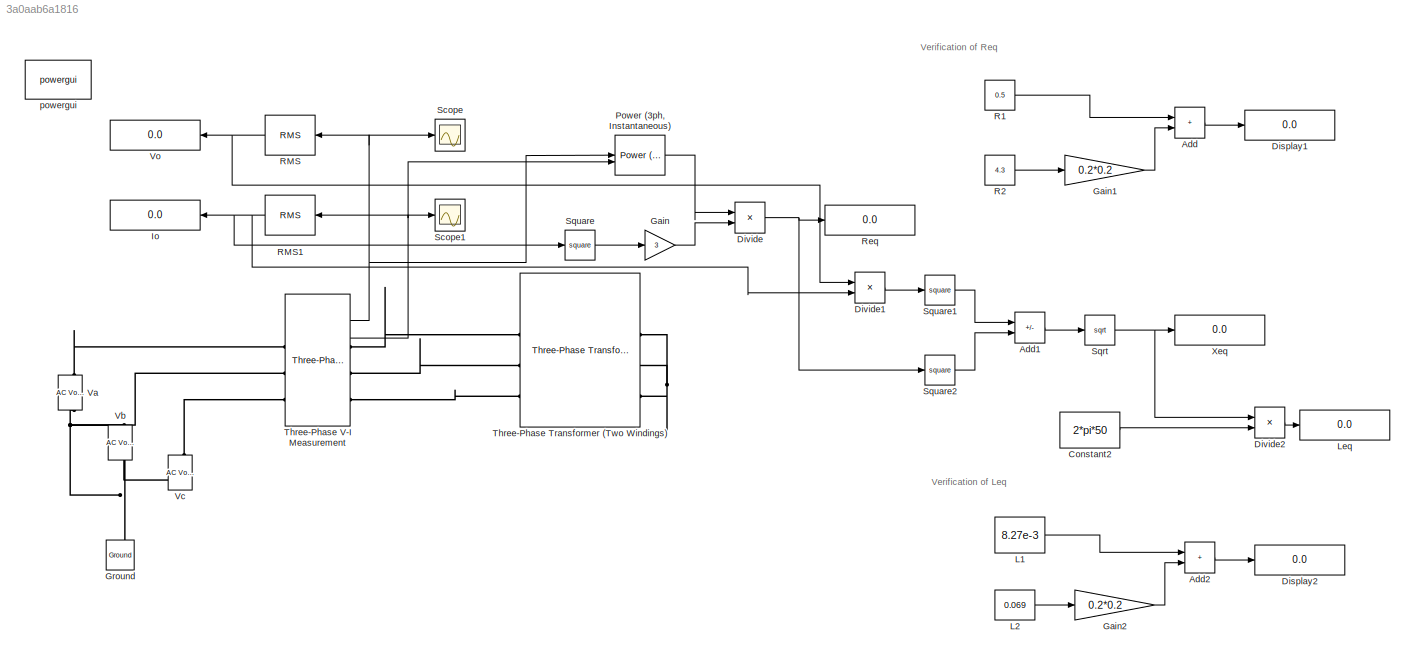
MODEL slx_3a0aab6a1816
KIND model
CONFIG AbsTol = auto
CONFIG EnableMultiTasking = off
CONFIG FixedStep = auto
CONFIG MaxStep = 1e-4
CONFIG MinStep = auto
CONFIG RelTol = 1e-3
CONFIG SampleTimeConstraint = Unconstrained
CONFIG SolverName = ode23tb
CONFIG StartTime = 0.0
CONFIG StopTime = 0.2
BLOCK [Sum] Add
  IconShape = rectangular
BLOCK [Sum] Add1
  IconShape = rectangular
  Inputs = +-
BLOCK [Sum] Add2
  IconShape = rectangular
BLOCK [Constant] Constant2
  Value = 2*pi*50
BLOCK [Display] Display1
  Decimation = 1
BLOCK [Display] Display2
  Decimation = 1
BLOCK [Product] Divide
  Inputs = */
BLOCK [Product] Divide1
  Inputs = */
BLOCK [Product] Divide2
  Inputs = */
BLOCK [Gain] Gain
  Gain = 3
BLOCK [Gain] Gain1
  Gain = 0.2*0.2
BLOCK [Gain] Gain2
  Gain = 0.2*0.2
BLOCK [Reference] Ground  REF=spsGroundLib/Ground
  NameLocation = right
  SourceBlock = spsGroundLib/Ground
  SourceType = Ground
BLOCK [Display] Io
  Decimation = 1
  NameLocation = top
BLOCK [Constant] L1
  Value = 8.27e-3
BLOCK [Constant] L2
  Value = 0.069
BLOCK [Display] Leq
  Decimation = 1
BLOCK [Reference] Power (3ph, Instantaneous)  REF=spsPower3phInstantaneousLib/Power
(3ph, Instantaneous)
  SourceBlock = spsPower3phInstantaneousLib/Power\n(3ph, Instantaneous)
  SourceType = Power (3ph, Instantaneous)
BLOCK [Constant] R1
  Value = 0.5
BLOCK [Constant] R2
  Value = 4.3
BLOCK [Reference] RMS  REF=spsRMSLib/RMS
  NameLocation = top
  SourceBlock = spsRMSLib/RMS
  SourceType = RMS
BLOCK [Reference] RMS1  REF=spsRMSLib/RMS
  NameLocation = top
  SourceBlock = spsRMSLib/RMS
  SourceType = RMS
BLOCK [Display] Req
  Decimation = 1
BLOCK [Scope] Scope
  Floating = off
  NumInputPorts = 1
  ScopeSpecificationString = Simulink.scopes.TimeScopeBlockCfg('CurrentConfiguration', extmgr.ConfigurationSet(extmgr.Configuration('Core','General UI',true),extmgr.Configuration('Core','Source UI',true),extmgr.Configuration('Sources','WiredSimulink',true,'DataLoggingSaveFormat','Array','DataLoggingDecimation','1','DataLoggingDecimateData',true),extmgr.Configuration('Visuals','Time Domain',true,'DisplayPropertyDefaults',struc...<+824ch>
BLOCK [Scope] Scope1
  Floating = off
  NumInputPorts = 1
  ScopeSpecificationString = Simulink.scopes.TimeScopeBlockCfg('CurrentConfiguration', extmgr.ConfigurationSet(extmgr.Configuration('Core','General UI',true),extmgr.Configuration('Core','Source UI',true),extmgr.Configuration('Sources','WiredSimulink',true,'DataLoggingVariableName','ScopeData1','DataLoggingSaveFormat','Array','DataLoggingDecimation','1','DataLoggingDecimateData',true),extmgr.Configuration('Visuals','Time Domai...<+863ch>
BLOCK [Sqrt] Sqrt
BLOCK [Math] Square
  Operator = square
BLOCK [Math] Square1
  Operator = square
BLOCK [Math] Square2
  Operator = square
BLOCK [Reference] Three-Phase Transformer (Two Windings)  REF=spsThreePhaseTransformerTwoWindingsLib/Three-Phase
Transformer
(Two Windings)
  SourceBlock = spsThreePhaseTransformerTwoWindingsLib/Three-Phase\nTransformer\n(Two Windings)
  SourceType = Three-Phase Transformer (Two Windings)
BLOCK [Reference] Three-Phase V-I Measurement  REF=spsThreePhaseVIMeasurementLib/Three-Phase
V-I Measurement
  SourceBlock = spsThreePhaseVIMeasurementLib/Three-Phase\nV-I Measurement
  SourceType = Three-Phase VI Measurement
BLOCK [Reference] Va  REF=spsACVoltageSourceLib/AC Voltage Source
  NameLocation = right
  SourceBlock = spsACVoltageSourceLib/AC Voltage Source
  SourceType = AC Voltage Source
BLOCK [Reference] Vb  REF=spsACVoltageSourceLib/AC Voltage Source
  NameLocation = right
  SourceBlock = spsACVoltageSourceLib/AC Voltage Source
  SourceType = AC Voltage Source
BLOCK [Reference] Vc  REF=spsACVoltageSourceLib/AC Voltage Source
  NameLocation = right
  SourceBlock = spsACVoltageSourceLib/AC Voltage Source
  SourceType = AC Voltage Source
BLOCK [Display] Vo
  Decimation = 1
  NameLocation = top
BLOCK [Display] Xeq
  Decimation = 1
BLOCK [Reference] powergui  REF=spspowerguiLib/powergui
  Priority = 1
  SourceBlock = spspowerguiLib/powergui
  SourceType = PSB option menu block
ANNOTATION (root): Verification of Leq
ANNOTATION (root): Verification of Req
LINE Add1:1 -> Sqrt:1
LINE Add2:1 -> Display2:1
LINE Add:1 -> Display1:1
LINE Constant2:1 -> Divide2:2
LINE Divide1:1 -> Square1:1
LINE Divide2:1 -> Leq:1
NET Divide:1 -> Req:1, Square2:1
LINE Gain1:1 -> Add:2
LINE Gain2:1 -> Add2:2
LINE Gain:1 -> Divide:2
LINE L1:1 -> Add2:1
LINE L2:1 -> Gain2:1
LINE Power (3ph, Instantaneous):1 -> Divide:1
LINE R1:1 -> Add:1
LINE R2:1 -> Gain1:1
NET RMS1:1 -> Divide1:2, Io:1, Square:1
NET RMS:1 -> Divide1:1, Vo:1
NET Sqrt:1 -> Divide2:1, Xeq:1
LINE Square1:1 -> Add1:1
LINE Square2:1 -> Add1:2
LINE Square:1 -> Gain:1
NET Three-Phase V-I Measurement:1 -> Power (3ph, Instantaneous):1, RMS:1, Scope:1
NET Three-Phase V-I Measurement:2 -> Power (3ph, Instantaneous):2, RMS1:1, Scope1:1
PNET net1: Ground:LConn1 -- Va:LConn1 -- Vb:LConn1 -- Vc:LConn1
PLINE Three-Phase Transformer (Two Windings):LConn1 -- Three-Phase V-I Measurement:RConn1
PLINE Three-Phase Transformer (Two Windings):LConn2 -- Three-Phase V-I Measurement:RConn2
PLINE Three-Phase Transformer (Two Windings):LConn3 -- Three-Phase V-I Measurement:RConn3
PNET net2: Three-Phase Transformer (Two Windings):RConn1 -- Three-Phase Transformer (Two Windings):RConn2 -- Three-Phase Transformer (Two Windings):RConn3
PLINE Three-Phase V-I Measurement:LConn1 -- Va:RConn1
PLINE Three-Phase V-I Measurement:LConn2 -- Vb:RConn1
PLINE Three-Phase V-I Measurement:LConn3 -- Vc:RConn1
note: NET lines group one-source signal fan-out (src -> all destinations, sorted); 1:1 wires keep LINE; PNET lines group multi-terminal physical nets as a canonical sorted terminal list (undirected conserving connections); 2-terminal nets keep the pairwise PLINE form
